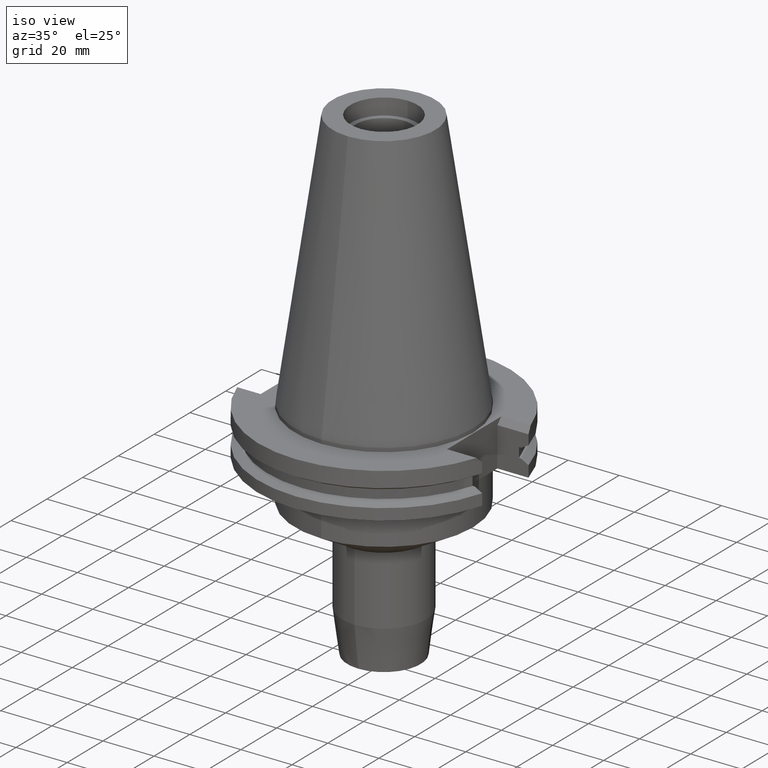
[diagram: clean part render]
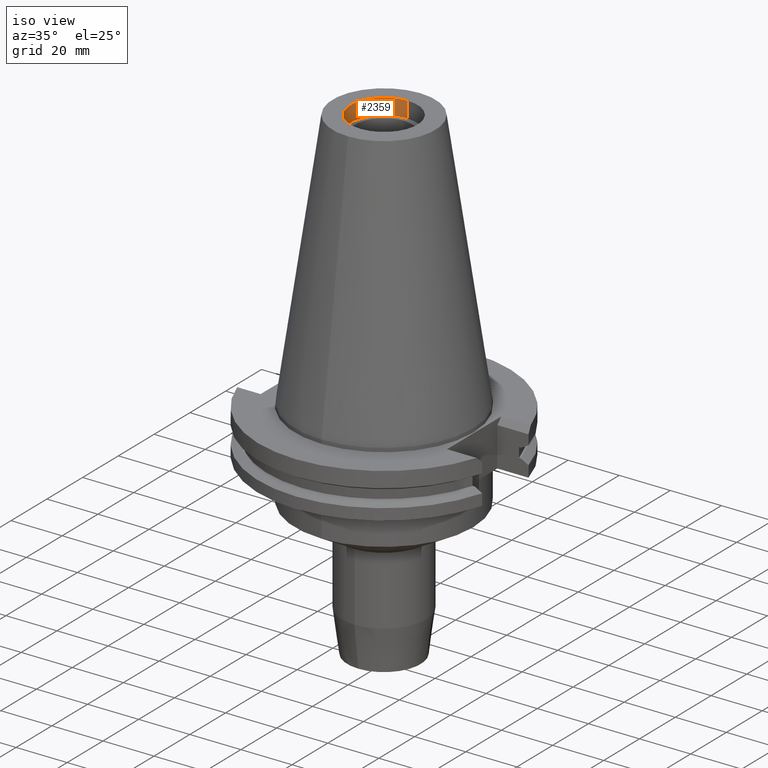
[diagram: same view with one face highlighted and labeled with its STEP entity id]
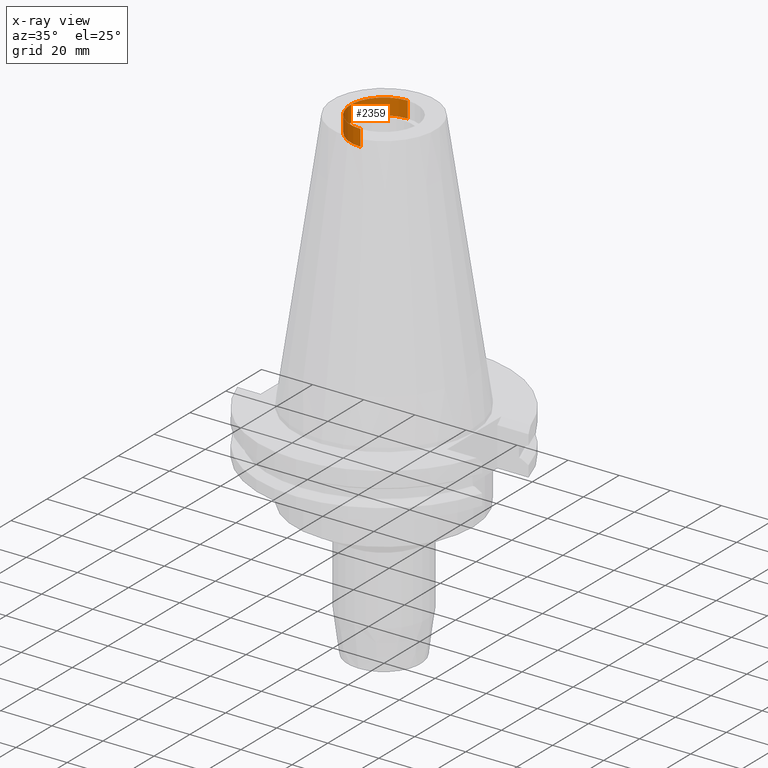
[diagram: x-ray of the same camera — body ghosted, the highlighted face saturated]
A machine part, iso view. The second image highlights one B-rep face of the part: STEP entity #2359.
The next image is the same camera in x-ray: the body ghosted, the highlighted face saturated — about 0% of this face is hidden behind the body in this view.
In plain terms, the highlighted cylindrical surface (partial cylindrical patch) has radius 13.115 mm, axis along (0, 0, -1).
Its self-contained STEP definition (entity closure, byte-faithful):
#42=CARTESIAN_POINT('',(0.E0,2.585535554700E-14,1.016E2));
#43=DIRECTION('',(0.E0,0.E0,1.E0));
#44=DIRECTION('',(0.E0,1.E0,0.E0));
#45=AXIS2_PLACEMENT_3D('',#42,#43,#44);
#1166=CARTESIAN_POINT('',(0.E0,2.585535554700E-14,9.525E1));
#1167=DIRECTION('',(0.E0,0.E0,-1.E0));
#1168=DIRECTION('',(0.E0,-1.E0,0.E0));
#1169=AXIS2_PLACEMENT_3D('',#1166,#1167,#1168);
#1198=DIRECTION('',(0.E0,0.E0,1.E0));
#1199=VECTOR('',#1198,6.35E0);
#1200=CARTESIAN_POINT('',(0.E0,-1.3115E1,9.525E1));
#1201=LINE('',#1200,#1199);
#1205=DIRECTION('',(0.E0,0.E0,1.E0));
#1206=VECTOR('',#1205,6.35E0);
#1207=CARTESIAN_POINT('',(0.E0,1.3115E1,9.525E1));
#1208=LINE('',#1207,#1206);
#1216=CARTESIAN_POINT('',(0.E0,-1.3115E1,1.016E2));
#1217=CARTESIAN_POINT('',(0.E0,1.3115E1,1.016E2));
#1218=VERTEX_POINT('',#1216);
#1219=VERTEX_POINT('',#1217);
#1220=CARTESIAN_POINT('',(0.E0,1.3115E1,9.525E1));
#1221=VERTEX_POINT('',#1220);
#1222=CARTESIAN_POINT('',(0.E0,-1.3115E1,9.525E1));
#1223=VERTEX_POINT('',#1222);
#2346=CARTESIAN_POINT('',(0.E0,2.585535554700E-14,1.11125E2));
#2347=DIRECTION('',(0.E0,0.E0,-1.E0));
#2348=DIRECTION('',(0.E0,-1.E0,0.E0));
#2349=AXIS2_PLACEMENT_3D('',#2346,#2347,#2348);
#2350=CYLINDRICAL_SURFACE('',#2349,1.3115E1);
#2352=ORIENTED_EDGE('',*,*,#2351,.F.);
#2353=ORIENTED_EDGE('',*,*,#2335,.F.);
#2355=ORIENTED_EDGE('',*,*,#2354,.T.);
#2356=ORIENTED_EDGE('',*,*,#1427,.F.);
#2357=EDGE_LOOP('',(#2352,#2353,#2355,#2356));
#2358=FACE_OUTER_BOUND('',#2357,.F.);
#46=CIRCLE('',#45,1.3115E1);
#1170=CIRCLE('',#1169,1.3115E1);
#1427=EDGE_CURVE('',#1219,#1218,#46,.T.);
#2335=EDGE_CURVE('',#1223,#1221,#1170,.T.);
#2351=EDGE_CURVE('',#1221,#1219,#1208,.T.);
#2354=EDGE_CURVE('',#1223,#1218,#1201,.T.);
#2359=ADVANCED_FACE('',(#2358),#2350,.F.);